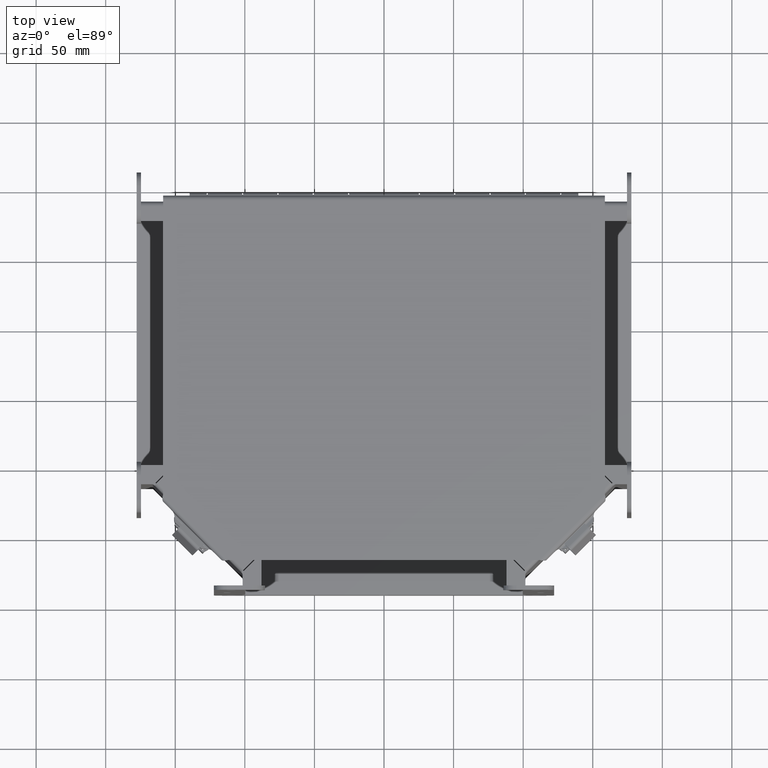
[diagram: clean part render]
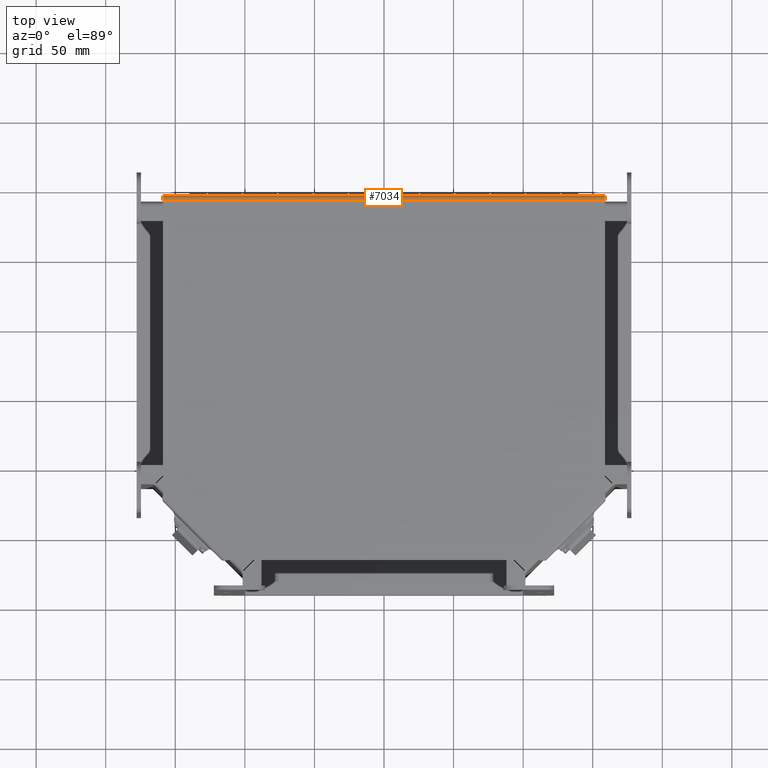
[diagram: same view with one face highlighted and labeled with its STEP entity id]
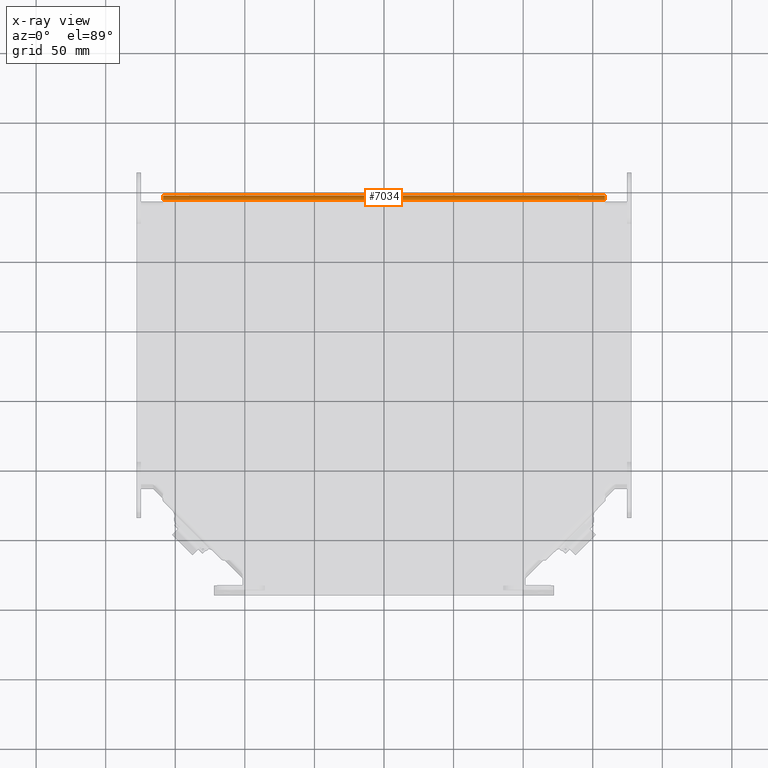
[diagram: x-ray of the same camera — body ghosted, the highlighted face saturated]
A machine part, top view. The second image highlights one B-rep face of the part: STEP entity #7034.
The next image is the same camera in x-ray: the body ghosted, the highlighted face saturated — about 0% of this face is hidden behind the body in this view.
In plain terms, the highlighted cylindrical surface (edge-blend (fillet) strip) has radius 3.4671 mm, axis along (-1, 0, 0).
Its self-contained STEP definition (entity closure, byte-faithful):
#651=FACE_OUTER_BOUND('',#1035,.T.);
#1035=EDGE_LOOP('',(#5149,#5150,#5151,#5152));
#1454=CIRCLE('',#7448,0.1365);
#1455=CIRCLE('',#7449,0.1365);
#1861=LINE('',#10722,#2571);
#1863=LINE('',#10728,#2573);
#2571=VECTOR('',#8402,12.5);
#2573=VECTOR('',#8408,12.5);
#3218=VERTEX_POINT('',#10713);
#3220=VERTEX_POINT('',#10720);
#3221=VERTEX_POINT('',#10726);
#3222=VERTEX_POINT('',#10727);
#3961=EDGE_CURVE('',#3220,#3218,#1861,.T.);
#3963=EDGE_CURVE('',#3221,#3222,#1863,.T.);
#3964=EDGE_CURVE('',#3218,#3221,#1454,.T.);
#3965=EDGE_CURVE('',#3222,#3220,#1455,.T.);
#5149=ORIENTED_EDGE('',*,*,#3963,.F.);
#5150=ORIENTED_EDGE('',*,*,#3964,.F.);
#5151=ORIENTED_EDGE('',*,*,#3961,.F.);
#5152=ORIENTED_EDGE('',*,*,#3965,.F.);
#6602=CYLINDRICAL_SURFACE('',#7447,0.1365);
#7034=ADVANCED_FACE('',(#651),#6602,.T.);
#7447=AXIS2_PLACEMENT_3D('',#10725,#8406,#8407);
#7448=AXIS2_PLACEMENT_3D('',#10729,#8409,#8410);
#7449=AXIS2_PLACEMENT_3D('',#10730,#8411,#8412);
#8402=DIRECTION('',(-1.,0.,0.));
#8406=DIRECTION('center_axis',(-1.,0.,0.));
#8407=DIRECTION('ref_axis',(0.,0.,1.));
#8408=DIRECTION('',(1.,0.,4.90219102946642E-35));
#8409=DIRECTION('center_axis',(-1.,0.,0.));
#8410=DIRECTION('ref_axis',(0.,5.12346583427145E-15,1.));
#8411=DIRECTION('center_axis',(1.,0.,0.));
#8412=DIRECTION('ref_axis',(0.,1.,-1.68113722687032E-15));
#10713=CARTESIAN_POINT('',(-6.25,5.01975,0.074));
#10720=CARTESIAN_POINT('',(6.25,5.01975,0.074));
#10722=CARTESIAN_POINT('',(3.125,5.01975,0.074));
#10725=CARTESIAN_POINT('Origin',(6.99353086378051E-16,5.01975,-0.0624999999999998));
#10726=CARTESIAN_POINT('',(-6.25,5.15625,-0.0624999999999998));
#10727=CARTESIAN_POINT('',(6.25,5.15625,-0.0624999999999998));
#10728=CARTESIAN_POINT('',(6.99353086378051E-16,5.15625,-0.0624999999999991));
#10729=CARTESIAN_POINT('Origin',(-6.25,5.01975,-0.0624999999999998));
#10730=CARTESIAN_POINT('Origin',(6.25,5.01975,-0.0624999999999998));